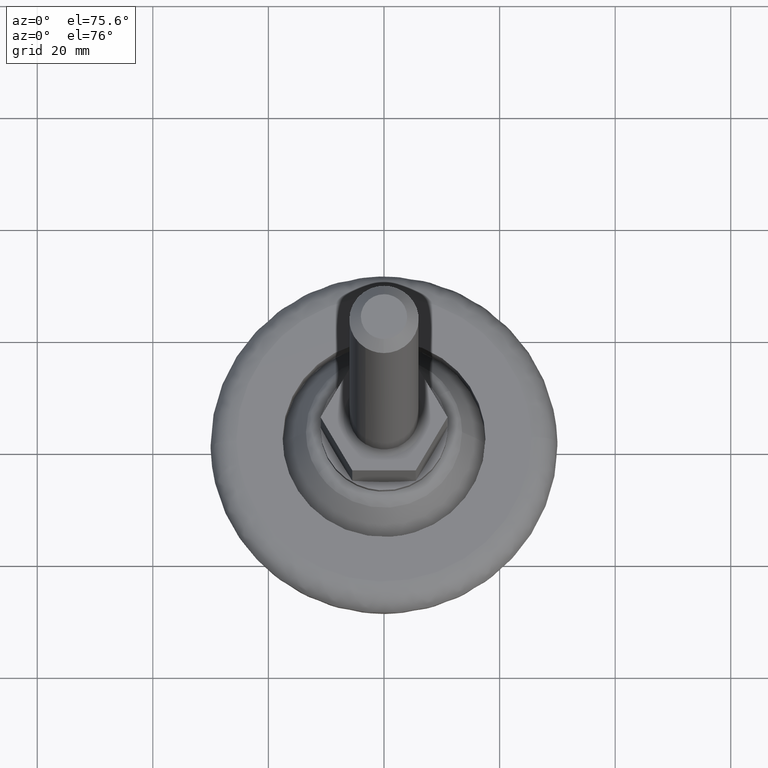
[diagram: clean part render]
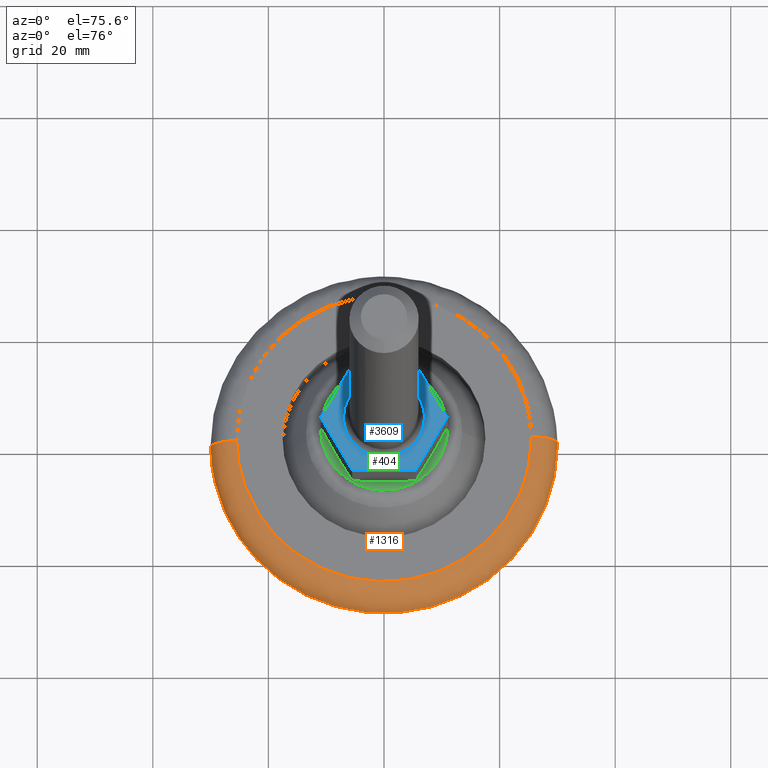
[diagram: same view with three faces highlighted in distinct colors, each labeled with its STEP entity id]
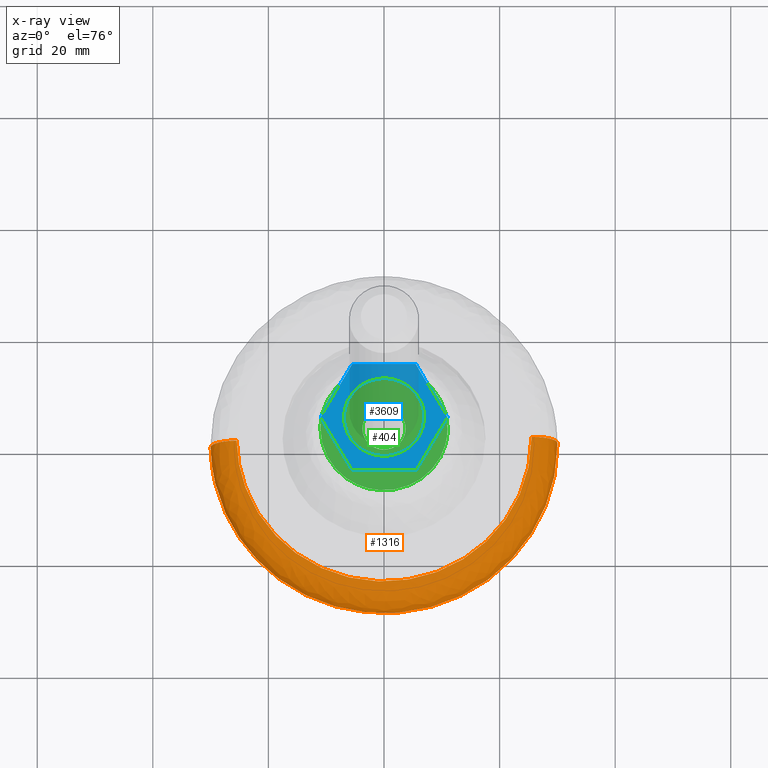
[diagram: x-ray of the same camera — body ghosted, the three highlighted faces saturated]
A machine part, auxiliary view with three faces highlighted in distinct colors.
The next image is the same camera in x-ray (body ghosted, the three faces saturated) — at least one of them is partly hidden behind the body in this view.
Their STEP definitions:

[orange] entity #1316 — the highlighted face is a freeform B-spline surface patch.
#934=CARTESIAN_POINT('',(29.997631326114480,0.376981196500591,4.500000000076401));
#935=VERTEX_POINT('',#934);
#949=CARTESIAN_POINT('',(30.0,0.0,4.500000000000001));
#950=VERTEX_POINT('',#949);
#951=CARTESIAN_POINT('',(29.997631326114480,0.376981196500592,4.500000000076401));
#952=CARTESIAN_POINT('',(29.999999999999996,0.188498039756700,4.500000000038201));
#953=CARTESIAN_POINT('',(30.0,0.0,4.500000000000001));
#961=(BOUNDED_CURVE()B_SPLINE_CURVE(2,(#951,#952,#953),.UNSPECIFIED.,.F.,.U.)B_SPLINE_CURVE_WITH_KNOTS((3,3),(0.497784295921728,0.500000000000000),.UNSPECIFIED.)CURVE()GEOMETRIC_REPRESENTATION_ITEM()RATIONAL_B_SPLINE_CURVE((0.994854295644012,0.997404141202307,1.0))REPRESENTATION_ITEM(''));
#962=EDGE_CURVE('',#935,#950,#961,.T.);
#964=CARTESIAN_POINT('',(-29.990525678498990,-0.753902863300128,4.499999999935793));
#965=VERTEX_POINT('',#964);
#966=CARTESIAN_POINT('',(30.0,0.0,4.500000000000001));
#967=CARTESIAN_POINT('',(30.000036582962299,-1.278224112026844,4.499999999999973));
#968=CARTESIAN_POINT('',(29.840273974002258,-3.773802528675806,4.499999999999753));
#969=CARTESIAN_POINT('',(29.211161647501719,-7.068226515414565,4.499999999999000));
#970=CARTESIAN_POINT('',(28.351294784472231,-9.926980627633041,4.499999999998031));
#971=CARTESIAN_POINT('',(27.310538954339801,-12.529460810169430,4.499999999996859));
#972=CARTESIAN_POINT('',(25.657014216520601,-15.722819247053391,4.499999999995052));
#973=CARTESIAN_POINT('',(23.166847674203790,-19.272785222100261,4.499999999992216));
#974=CARTESIAN_POINT('',(20.129283737298930,-22.367377489604820,4.499999999989068));
#975=CARTESIAN_POINT('',(16.760906278980229,-24.985995463144480,4.499999999985183));
#976=CARTESIAN_POINT('',(13.231105711641961,-27.053970653168200,4.499999999982038));
#977=CARTESIAN_POINT('',(9.203412739958925,-28.652244880372240,4.499999999976875));
#978=CARTESIAN_POINT('',(5.708662988710842,-29.510433846027631,4.499999999973642));
#979=CARTESIAN_POINT('',(1.905062762135516,-30.024472463686269,4.499999999968804));
#980=CARTESIAN_POINT('',(-1.699090145431153,-30.047815215041961,4.499999999965940));
#981=CARTESIAN_POINT('',(-5.566702502652559,-29.540203877673200,4.499999999960974));
#982=CARTESIAN_POINT('',(-8.468598123391837,-28.829950150902530,4.499999999958362));
#983=CARTESIAN_POINT('',(-11.285173224536180,-27.841768514437771,4.499999999955209));
#984=CARTESIAN_POINT('',(-14.056867265832610,-26.574890471989921,4.499999999952291));
#985=CARTESIAN_POINT('',(-17.349428010444068,-24.595332612368001,4.499999999948811));
#986=CARTESIAN_POINT('',(-20.859072732559628,-21.749597590370708,4.499999999945112));
#987=CARTESIAN_POINT('',(-24.059863060795010,-18.137622867594459,4.499999999941769));
#988=CARTESIAN_POINT('',(-26.343400689000120,-14.525825261031990,4.499999999939395));
#989=CARTESIAN_POINT('',(-27.939248837303960,-11.100409518784600,4.499999999937787));
#990=CARTESIAN_POINT('',(-28.946926025231541,-8.093753990024807,4.499999999936710));
#991=CARTESIAN_POINT('',(-29.720466265241800,-4.582982862135848,4.499999999936052));
#992=CARTESIAN_POINT('',(-29.953892336198859,-2.214273546914210,4.499999999935764));
#993=CARTESIAN_POINT('',(-29.990525678498990,-0.753902863300128,4.499999999935793));
#994=B_SPLINE_CURVE_WITH_KNOTS('',3,(#966,#967,#968,#969,#970,#971,#972,#973,#974,#975,#976,#977,#978,#979,#980,#981,#982,#983,#984,#985,#986,#987,#988,#989,#990,#991,#992,#993),.UNSPECIFIED.,.F.,.U.,(4,1,1,1,1,1,1,1,1,1,1,1,1,1,1,1,1,1,1,1,1,1,1,1,1,4),(0.000000024509589,3.834673633457328,7.486773837133228,10.043262194386770,12.782369810683321,15.886646130326600,20.817012315154841,25.747364046493221,28.851651925088579,33.599413217269593,37.981953474303403,41.816674615418087,44.373158463263927,49.485995184109733,52.590293406680317,56.059800094240167,58.433710915916699,61.537980429858777,65.190097286318547,69.937848933861289,75.050806200691767,79.615959951884690,82.720231001969992,86.372375663363854,89.111458632479795,93.493941698257160),.UNSPECIFIED.);
#995=EDGE_CURVE('',#950,#965,#994,.T.);
#1095=CARTESIAN_POINT('',(-29.997631326114480,-0.376981196500602,4.500000000076401));
#1096=VERTEX_POINT('',#1095);
#1097=CARTESIAN_POINT('',(-29.990525678498994,-0.753902863300128,4.499999999935793));
#1098=CARTESIAN_POINT('',(-29.995262652228959,-0.565464353244477,4.500000000006099));
#1099=CARTESIAN_POINT('',(-29.997631326114483,-0.376981196500602,4.500000000076401));
#1107=(BOUNDED_CURVE()B_SPLINE_CURVE(2,(#1097,#1098,#1099),.UNSPECIFIED.,.F.,.U.)B_SPLINE_CURVE_WITH_KNOTS((3,3),(0.995579891769807,0.997784295921728),.UNSPECIFIED.)CURVE()GEOMETRIC_REPRESENTATION_ITEM()RATIONAL_B_SPLINE_CURVE((0.989826157681576,0.992317454108816,0.994854295644012))REPRESENTATION_ITEM(''));
#1108=EDGE_CURVE('',#965,#1096,#1107,.T.);
#1156=CARTESIAN_POINT('',(-25.497986628680518,-0.320434017136763,9.0));
#1157=VERTEX_POINT('',#1156);
#1158=CARTESIAN_POINT('',(-25.497986628680518,-0.320434017136762,9.0));
#1159=CARTESIAN_POINT('',(-29.997631326037506,-0.376981196545936,8.999999998515504));
#1160=CARTESIAN_POINT('',(-29.997631326114476,-0.376981196500602,4.500000000076401));
#1168=(BOUNDED_CURVE()B_SPLINE_CURVE(2,(#1158,#1159,#1160),.UNSPECIFIED.,.F.,.U.)B_SPLINE_CURVE_WITH_KNOTS((3,3),(-1.734750791315617,-0.265249208359240),.UNSPECIFIED.)CURVE()GEOMETRIC_REPRESENTATION_ITEM()RATIONAL_B_SPLINE_CURVE((0.889029723454961,0.628638946281170,0.889029723570190))REPRESENTATION_ITEM(''));
#1169=EDGE_CURVE('',#1157,#1096,#1168,.T.);
#1186=CARTESIAN_POINT('',(25.497986628680518,0.320434017136755,9.0));
#1187=VERTEX_POINT('',#1186);
#1217=CARTESIAN_POINT('',(25.497986628680522,0.320434017136755,9.0));
#1218=CARTESIAN_POINT('',(29.997631326037496,0.376981196545927,8.999999998515500));
#1219=CARTESIAN_POINT('',(29.997631326114480,0.376981196500592,4.500000000076401));
#1227=(BOUNDED_CURVE()B_SPLINE_CURVE(2,(#1217,#1218,#1219),.UNSPECIFIED.,.F.,.U.)B_SPLINE_CURVE_WITH_KNOTS((3,3),(-1.734750791315616,-0.265249208359241),.UNSPECIFIED.)CURVE()GEOMETRIC_REPRESENTATION_ITEM()RATIONAL_B_SPLINE_CURVE((0.889029723454961,0.628638946281170,0.889029723570189))REPRESENTATION_ITEM(''));
#1228=EDGE_CURVE('',#1187,#935,#1227,.T.);
#1235=CARTESIAN_POINT('',(25.176246035102015,1.020594968145682,8.989107148384694));
#1236=CARTESIAN_POINT('',(25.180644449947955,0.670598660126522,8.989107148384694));
#1237=CARTESIAN_POINT('',(25.501596285726865,-24.868592505131485,8.989107148384692));
#1238=CARTESIAN_POINT('',(0.316501890297689,-25.185094395429171,8.989107148384694));
#1239=CARTESIAN_POINT('',(-24.868592505131485,-25.501596285726865,8.989107148384692));
#1240=CARTESIAN_POINT('',(-25.189544340909830,0.037594879485909,8.989107148384692));
#1241=CARTESIAN_POINT('',(-25.193942755755209,0.387591187460878,8.989107148384694));
#1242=CARTESIAN_POINT('',(30.335859251903123,1.229755431516719,9.348917080855310));
#1243=CARTESIAN_POINT('',(30.341159076726569,0.808030972518678,9.348917080855308));
#1244=CARTESIAN_POINT('',(30.727886697010145,-29.965155288710019,9.348917080855307));
#1245=CARTESIAN_POINT('',(0.381365704150065,-30.346520992860089,9.348917080855310));
#1246=CARTESIAN_POINT('',(-29.965155288710019,-30.727886697010145,9.348917080855307));
#1247=CARTESIAN_POINT('',(-30.351882908992916,0.045299564164041,9.348917080855308));
#1248=CARTESIAN_POINT('',(-30.357182733815691,0.467024023108835,9.348917080855310));
#1249=CARTESIAN_POINT('',(29.976203988141190,1.215175722057622,4.187082936711136));
#1250=CARTESIAN_POINT('',(29.981440979409168,0.798451135332072,4.187082936711134));
#1251=CARTESIAN_POINT('',(30.363583642229635,-29.609895009463052,4.187082936711133));
#1252=CARTESIAN_POINT('',(0.376844316383301,-29.986739325846337,4.187082936711134));
#1253=CARTESIAN_POINT('',(-29.609895009463052,-30.363583642229635,4.187082936711133));
#1254=CARTESIAN_POINT('',(-29.992037672282819,0.044762502511611,4.187082936711135));
#1255=CARTESIAN_POINT('',(-29.997274663550140,0.461487089184544,4.187082936711134));
#1263=(BOUNDED_SURFACE()B_SPLINE_SURFACE(2,2,((#1235,#1242,#1249),(#1236,#1243,#1250),(#1237,#1244,#1251),(#1238,#1245,#1252),(#1239,#1246,#1253),(#1240,#1247,#1254),(#1241,#1248,#1255)),.UNSPECIFIED.,.F.,.F.,.U.)B_SPLINE_SURFACE_WITH_KNOTS((3,1,2,1,3),(3,3),(0.0,0.993751592186066,50.681331195042837,100.368910797899600,101.362662389958000),(0.0,8.202284840181363),.UNSPECIFIED.)GEOMETRIC_REPRESENTATION_ITEM()RATIONAL_B_SPLINE_SURFACE(((0.927077710674701,0.608371547716399,0.927077722427663),(0.921709902957817,0.604849058230390,0.921709914642729),(0.647951709431553,0.425202094466791,0.647951717645915),(0.916342095240933,0.601326568744382,0.916342106857795),(0.647951709431553,0.425202094466791,0.647951717645915),(0.921709902957127,0.604849058229938,0.921709914642039),(0.927077710673321,0.608371547715494,0.927077722426283)))REPRESENTATION_ITEM('')SURFACE());
#1264=ORIENTED_EDGE('',*,*,#995,.F.);
#1265=ORIENTED_EDGE('',*,*,#962,.F.);
#1266=ORIENTED_EDGE('',*,*,#1228,.F.);
#1267=CARTESIAN_POINT('',(25.500000000000000,0.0,9.0));
#1268=VERTEX_POINT('',#1267);
#1269=CARTESIAN_POINT('',(25.497986628680515,0.320434017136755,9.0));
#1270=CARTESIAN_POINT('',(25.500000000742187,0.160223333848827,9.0));
#1271=CARTESIAN_POINT('',(25.500000000000000,0.0,9.0));
#1279=(BOUNDED_CURVE()B_SPLINE_CURVE(2,(#1269,#1270,#1271),.UNSPECIFIED.,.F.,.U.)B_SPLINE_CURVE_WITH_KNOTS((3,3),(0.497784295921089,0.500000000000000),.UNSPECIFIED.)CURVE()GEOMETRIC_REPRESENTATION_ITEM()RATIONAL_B_SPLINE_CURVE((0.994854295642542,0.997404141201559,1.0))REPRESENTATION_ITEM(''));
#1280=EDGE_CURVE('',#1187,#1268,#1279,.T.);
#1281=ORIENTED_EDGE('',*,*,#1280,.T.);
#1282=CARTESIAN_POINT('',(25.500000000000000,0.0,9.0));
#1283=CARTESIAN_POINT('',(25.500301774260929,-1.818166101279122,8.999999999999963));
#1284=CARTESIAN_POINT('',(25.226608718556580,-4.363417403769231,9.000000000000041));
#1285=CARTESIAN_POINT('',(24.328880486357772,-7.783172962598037,8.999999999999984));
#1286=CARTESIAN_POINT('',(23.200093725838698,-10.805393868594400,9.000000000000020));
#1287=CARTESIAN_POINT('',(21.512057071484449,-13.864687915492251,9.000000000000014));
#1288=CARTESIAN_POINT('',(19.620381620566299,-16.348417043659040,8.999999999999929));
#1289=CARTESIAN_POINT('',(17.857155771899201,-18.257951065865569,9.000000000000144));
#1290=CARTESIAN_POINT('',(15.764252432219200,-20.132811274727221,8.999999999999954));
#1291=CARTESIAN_POINT('',(13.060511124938531,-21.991037984125771,8.999999999999961));
#1292=CARTESIAN_POINT('',(9.715134070016463,-23.680738941016749,9.000000000000199));
#1293=CARTESIAN_POINT('',(6.198966008130488,-24.838053904906470,8.999999999999712));
#1294=CARTESIAN_POINT('',(2.706768524927926,-25.420074930658469,9.000000000000362));
#1295=CARTESIAN_POINT('',(-0.048013459483527,-25.538445059720811,8.999999999998897));
#1296=CARTESIAN_POINT('',(-2.747739940979913,-25.398557322302931,9.000000000000343));
#1297=CARTESIAN_POINT('',(-5.627524805775439,-24.946667171147439,8.999999999999874));
#1298=CARTESIAN_POINT('',(-8.523672598621452,-24.091615904244829,9.000000000000071));
#1299=CARTESIAN_POINT('',(-11.397314065341289,-22.876259343439060,8.999999999999906));
#1300=CARTESIAN_POINT('',(-14.431735637366121,-21.154123311298989,9.000000000000130));
#1301=CARTESIAN_POINT('',(-17.281425505790839,-18.872494283685040,8.999999999999744));
#1302=CARTESIAN_POINT('',(-19.875835396314191,-16.098880349397682,8.999999999999915));
#1303=CARTESIAN_POINT('',(-21.837321773509650,-13.337406311898750,9.000000000000082));
#1304=CARTESIAN_POINT('',(-23.334033518249878,-10.419474218798220,9.000000000000057));
#1305=CARTESIAN_POINT('',(-24.509536569807249,-7.305356371769106,8.999999999999647));
#1306=CARTESIAN_POINT('',(-25.280339774802780,-4.006187783524849,9.000000000000959));
#1307=CARTESIAN_POINT('',(-25.483649725207439,-1.463151753713669,8.999999999999069));
#1308=CARTESIAN_POINT('',(-25.497986628680518,-0.320434017136763,9.0));
#1309=B_SPLINE_CURVE_WITH_KNOTS('',3,(#1282,#1283,#1284,#1285,#1286,#1287,#1288,#1289,#1290,#1291,#1292,#1293,#1294,#1295,#1296,#1297,#1298,#1299,#1300,#1301,#1302,#1303,#1304,#1305,#1306,#1307,#1308),.UNSPECIFIED.,.F.,.U.,(4,1,1,1,1,1,1,1,1,1,1,1,1,1,1,1,1,1,1,1,1,1,1,1,4),(0.000000065862949,5.454410054043777,7.636175323779895,10.597142466608650,15.116503860535760,18.077483805775039,19.947575772341470,22.908555252213262,26.492897097957471,29.765527656353591,34.129064543511298,37.557586552396572,40.362626471554847,42.388557183327691,45.661238475690062,49.089729661919932,51.427329154451037,55.011661982722572,59.531039108005459,62.336177836645753,66.388027182038343,69.660698679552667,72.154147708590017,76.361859129409609,79.790294385250206),.UNSPECIFIED.);
#1310=EDGE_CURVE('',#1268,#1157,#1309,.T.);
#1311=ORIENTED_EDGE('',*,*,#1310,.T.);
#1312=ORIENTED_EDGE('',*,*,#1169,.T.);
#1313=ORIENTED_EDGE('',*,*,#1108,.F.);
#1314=EDGE_LOOP('',(#1264,#1265,#1266,#1281,#1311,#1312,#1313));
#1315=FACE_OUTER_BOUND('',#1314,.T.);
#1316=ADVANCED_FACE('',(#1315),#1263,.T.);

[blue] entity #3609 — the highlighted face is a freeform B-spline surface patch.
#3403=CARTESIAN_POINT('',(-7.0,0.0,24.0));
#3404=VERTEX_POINT('',#3403);
#3405=CARTESIAN_POINT('',(-2.820345049542372,6.406688206968656,24.0));
#3406=VERTEX_POINT('',#3405);
#3407=CARTESIAN_POINT('',(-7.0,0.0,24.0));
#3408=CARTESIAN_POINT('',(-6.999999999709179,4.566725224280734,23.999999999999996));
#3409=CARTESIAN_POINT('',(-2.820345049542372,6.406688206968656,24.000000000000004));
#3417=(BOUNDED_CURVE()B_SPLINE_CURVE(2,(#3407,#3408,#3409),.UNSPECIFIED.,.F.,.U.)B_SPLINE_CURVE_WITH_KNOTS((3,3),(0.500000000000000,0.681585009858323),.UNSPECIFIED.)CURVE()GEOMETRIC_REPRESENTATION_ITEM()RATIONAL_B_SPLINE_CURVE((1.0,0.787259927897293,0.883563120514829))REPRESENTATION_ITEM(''));
#3418=EDGE_CURVE('',#3404,#3406,#3417,.T.);
#3420=CARTESIAN_POINT('',(2.820345049542372,-6.406688206968656,24.0));
#3421=VERTEX_POINT('',#3420);
#3422=CARTESIAN_POINT('',(2.820345049542371,-6.406688206968656,23.999999999999996));
#3423=CARTESIAN_POINT('',(1.472579583927204,-6.999999998769413,24.000000000000007));
#3424=CARTESIAN_POINT('',(-4.805479E-010,-6.999999998908389,24.0));
#3425=CARTESIAN_POINT('',(-7.000000000189727,-6.999999999569014,24.0));
#3426=CARTESIAN_POINT('',(-7.0,0.0,24.0));
#3434=(BOUNDED_CURVE()B_SPLINE_CURVE(2,(#3422,#3423,#3424,#3425,#3426),.UNSPECIFIED.,.F.,.U.)B_SPLINE_CURVE_WITH_KNOTS((3,2,3),(0.181585009858323,0.250000000000000,0.500000000000000),.UNSPECIFIED.)CURVE()GEOMETRIC_REPRESENTATION_ITEM()RATIONAL_B_SPLINE_CURVE((0.883563120514829,0.919846853289254,1.0,0.707106781186547,1.0))REPRESENTATION_ITEM(''));
#3435=EDGE_CURVE('',#3421,#3404,#3434,.T.);
#3516=CARTESIAN_POINT('',(7.0,0.0,24.0));
#3517=VERTEX_POINT('',#3516);
#3518=CARTESIAN_POINT('',(-2.820345049542372,6.406688206968656,24.000000000000004));
#3519=CARTESIAN_POINT('',(-1.472579583927204,6.999999998769411,23.999999999999996));
#3520=CARTESIAN_POINT('',(4.805498E-010,6.999999998908386,23.999999999999989));
#3521=CARTESIAN_POINT('',(7.000000000189728,6.999999999569013,24.0));
#3522=CARTESIAN_POINT('',(7.0,0.0,24.0));
#3530=(BOUNDED_CURVE()B_SPLINE_CURVE(2,(#3518,#3519,#3520,#3521,#3522),.UNSPECIFIED.,.F.,.U.)B_SPLINE_CURVE_WITH_KNOTS((3,2,3),(0.681585009858323,0.750000000000000,1.0),.UNSPECIFIED.)CURVE()GEOMETRIC_REPRESENTATION_ITEM()RATIONAL_B_SPLINE_CURVE((0.883563120514829,0.919846853289254,1.0,0.707106781186547,1.0))REPRESENTATION_ITEM(''));
#3531=EDGE_CURVE('',#3406,#3517,#3530,.T.);
#3538=CARTESIAN_POINT('',(7.0,0.0,24.0));
#3539=CARTESIAN_POINT('',(6.999999999709179,-4.566725224280735,24.000000000000011));
#3540=CARTESIAN_POINT('',(2.820345049542371,-6.406688206968656,23.999999999999996));
#3548=(BOUNDED_CURVE()B_SPLINE_CURVE(2,(#3538,#3539,#3540),.UNSPECIFIED.,.F.,.U.)B_SPLINE_CURVE_WITH_KNOTS((3,3),(0.0,0.181585009858323),.UNSPECIFIED.)CURVE()GEOMETRIC_REPRESENTATION_ITEM()RATIONAL_B_SPLINE_CURVE((1.0,0.787259927897293,0.883563120514829))REPRESENTATION_ITEM(''));
#3549=EDGE_CURVE('',#3517,#3421,#3548,.T.);
#3554=CARTESIAN_POINT('',(-12.065523541927361,-10.449049963174311,24.0));
#3555=CARTESIAN_POINT('',(12.065525130385531,-10.449049963174311,24.0));
#3556=CARTESIAN_POINT('',(-12.065523541927361,10.449050472794029,24.0));
#3557=CARTESIAN_POINT('',(12.065525130385531,10.449050472794029,24.0));
#3558=B_SPLINE_SURFACE_WITH_KNOTS('',1,1,((#3554,#3556),(#3555,#3557)),.UNSPECIFIED.,.F.,.F.,.U.,(2,2),(2,2),(0.0,24.131048672312890),(0.0,20.898100435968342),.UNSPECIFIED.);
#3559=CARTESIAN_POINT('',(5.484827999999999,9.500000000000000,24.0));
#3560=VERTEX_POINT('',#3559);
#3561=CARTESIAN_POINT('',(-5.484827000000000,9.500000000000000,24.0));
#3562=VERTEX_POINT('',#3561);
#3563=CARTESIAN_POINT('',(5.484827999999999,9.500000000000000,24.0));
#3564=CARTESIAN_POINT('',(-5.484827000000000,9.500000000000000,24.0));
#3565=QUASI_UNIFORM_CURVE('',1,(#3563,#3564),.UNSPECIFIED.,.F.,.U.);
#3566=EDGE_CURVE('',#3560,#3562,#3565,.T.);
#3567=ORIENTED_EDGE('',*,*,#3566,.T.);
#3568=CARTESIAN_POINT('',(-10.969654999999999,0.0,24.0));
#3569=VERTEX_POINT('',#3568);
#3570=CARTESIAN_POINT('',(-5.484827000000000,9.500000000000000,24.0));
#3571=CARTESIAN_POINT('',(-10.969654999999999,0.0,24.0));
#3572=QUASI_UNIFORM_CURVE('',1,(#3570,#3571),.UNSPECIFIED.,.F.,.U.);
#3573=EDGE_CURVE('',#3562,#3569,#3572,.T.);
#3574=ORIENTED_EDGE('',*,*,#3573,.T.);
#3575=CARTESIAN_POINT('',(-5.484827000000000,-9.500000000000000,24.0));
#3576=VERTEX_POINT('',#3575);
#3577=CARTESIAN_POINT('',(-10.969654999999999,0.0,24.0));
#3578=CARTESIAN_POINT('',(-5.484827000000000,-9.500000000000000,24.0));
#3579=QUASI_UNIFORM_CURVE('',1,(#3577,#3578),.UNSPECIFIED.,.F.,.U.);
#3580=EDGE_CURVE('',#3569,#3576,#3579,.T.);
#3581=ORIENTED_EDGE('',*,*,#3580,.T.);
#3582=CARTESIAN_POINT('',(5.484827999999999,-9.500000000000000,24.0));
#3583=VERTEX_POINT('',#3582);
#3584=CARTESIAN_POINT('',(-5.484827000000000,-9.500000000000000,24.0));
#3585=CARTESIAN_POINT('',(5.484827999999999,-9.500000000000000,24.0));
#3586=QUASI_UNIFORM_CURVE('',1,(#3584,#3585),.UNSPECIFIED.,.F.,.U.);
#3587=EDGE_CURVE('',#3576,#3583,#3586,.T.);
#3588=ORIENTED_EDGE('',*,*,#3587,.T.);
#3589=CARTESIAN_POINT('',(10.969656000000001,0.0,24.0));
#3590=VERTEX_POINT('',#3589);
#3591=CARTESIAN_POINT('',(5.484827999999999,-9.500000000000000,24.0));
#3592=CARTESIAN_POINT('',(10.969656000000001,0.0,24.0));
#3593=QUASI_UNIFORM_CURVE('',1,(#3591,#3592),.UNSPECIFIED.,.F.,.U.);
#3594=EDGE_CURVE('',#3583,#3590,#3593,.T.);
#3595=ORIENTED_EDGE('',*,*,#3594,.T.);
#3596=CARTESIAN_POINT('',(10.969656000000001,0.0,24.0));
#3597=CARTESIAN_POINT('',(5.484827999999999,9.500000000000000,24.0));
#3598=QUASI_UNIFORM_CURVE('',1,(#3596,#3597),.UNSPECIFIED.,.F.,.U.);
#3599=EDGE_CURVE('',#3590,#3560,#3598,.T.);
#3600=ORIENTED_EDGE('',*,*,#3599,.T.);
#3601=EDGE_LOOP('',(#3567,#3574,#3581,#3588,#3595,#3600));
#3602=FACE_OUTER_BOUND('',#3601,.T.);
#3603=ORIENTED_EDGE('',*,*,#3549,.T.);
#3604=ORIENTED_EDGE('',*,*,#3435,.T.);
#3605=ORIENTED_EDGE('',*,*,#3418,.T.);
#3606=ORIENTED_EDGE('',*,*,#3531,.T.);
#3607=EDGE_LOOP('',(#3603,#3604,#3605,#3606));
#3608=FACE_BOUND('',#3607,.T.);
#3609=ADVANCED_FACE('',(#3602,#3608),#3558,.T.);

[green] entity #404 — the highlighted face is a freeform B-spline surface patch.
#162=CARTESIAN_POINT('',(-0.863050053079020,-10.966090671058680,16.0));
#163=VERTEX_POINT('',#162);
#169=CARTESIAN_POINT('',(-11.0,0.0,16.0));
#170=VERTEX_POINT('',#169);
#171=CARTESIAN_POINT('',(-11.0,0.0,16.0));
#172=CARTESIAN_POINT('',(-11.0,-10.168295408172634,16.0));
#173=CARTESIAN_POINT('',(-0.863050053079021,-10.966090671058689,16.000000000000004));
#181=(BOUNDED_CURVE()B_SPLINE_CURVE(2,(#171,#172,#173),.UNSPECIFIED.,.F.,.U.)B_SPLINE_CURVE_WITH_KNOTS((3,3),(0.0,0.236331300631630),.UNSPECIFIED.)CURVE()GEOMETRIC_REPRESENTATION_ITEM()RATIONAL_B_SPLINE_CURVE((1.0,0.723120658606529,0.969723356169443))REPRESENTATION_ITEM(''));
#182=EDGE_CURVE('',#170,#163,#181,.T.);
#184=CARTESIAN_POINT('',(0.863050053079018,10.966090671058680,16.0));
#185=VERTEX_POINT('',#184);
#186=CARTESIAN_POINT('',(0.863050053079015,10.966090671058685,16.0));
#187=CARTESIAN_POINT('',(0.432191177120895,11.000000000000002,15.999999999999996));
#188=CARTESIAN_POINT('',(0.0,11.0,16.0));
#189=CARTESIAN_POINT('',(-11.0,11.0,15.999999999999998));
#190=CARTESIAN_POINT('',(-11.0,0.0,16.0));
#198=(BOUNDED_CURVE()B_SPLINE_CURVE(2,(#186,#187,#188,#189,#190),.UNSPECIFIED.,.F.,.U.)B_SPLINE_CURVE_WITH_KNOTS((3,2,3),(0.736331300631630,0.750000000000000,1.0),.UNSPECIFIED.)CURVE()GEOMETRIC_REPRESENTATION_ITEM()RATIONAL_B_SPLINE_CURVE((0.969723356169443,0.983986122580019,1.0,0.707106781186548,1.0))REPRESENTATION_ITEM(''));
#199=EDGE_CURVE('',#185,#170,#198,.T.);
#231=CARTESIAN_POINT('',(11.0,0.0,16.0));
#232=VERTEX_POINT('',#231);
#233=CARTESIAN_POINT('',(11.0,0.0,16.0));
#234=CARTESIAN_POINT('',(11.0,10.168295408172639,16.000000000000004));
#235=CARTESIAN_POINT('',(0.863050053079015,10.966090671058685,16.0));
#243=(BOUNDED_CURVE()B_SPLINE_CURVE(2,(#233,#234,#235),.UNSPECIFIED.,.F.,.U.)B_SPLINE_CURVE_WITH_KNOTS((3,3),(0.500000000000000,0.736331300631630),.UNSPECIFIED.)CURVE()GEOMETRIC_REPRESENTATION_ITEM()RATIONAL_B_SPLINE_CURVE((1.0,0.723120658606529,0.969723356169443))REPRESENTATION_ITEM(''));
#244=EDGE_CURVE('',#232,#185,#243,.T.);
#246=CARTESIAN_POINT('',(-0.863050053079021,-10.966090671058689,16.000000000000004));
#247=CARTESIAN_POINT('',(-0.432191177120898,-11.000000000000004,15.999999999999998));
#248=CARTESIAN_POINT('',(0.0,-11.0,16.0));
#249=CARTESIAN_POINT('',(11.0,-11.0,15.999999999999998));
#250=CARTESIAN_POINT('',(11.0,0.0,16.0));
#258=(BOUNDED_CURVE()B_SPLINE_CURVE(2,(#246,#247,#248,#249,#250),.UNSPECIFIED.,.F.,.U.)B_SPLINE_CURVE_WITH_KNOTS((3,2,3),(0.236331300631630,0.250000000000000,0.500000000000000),.UNSPECIFIED.)CURVE()GEOMETRIC_REPRESENTATION_ITEM()RATIONAL_B_SPLINE_CURVE((0.969723356169443,0.983986122580019,1.0,0.707106781186548,1.0))REPRESENTATION_ITEM(''));
#259=EDGE_CURVE('',#163,#232,#258,.T.);
#285=CARTESIAN_POINT('',(0.294221609199165,3.738440001481934,16.0));
#286=VERTEX_POINT('',#285);
#292=CARTESIAN_POINT('',(-3.750000000000000,0.0,16.0));
#293=VERTEX_POINT('',#292);
#294=CARTESIAN_POINT('',(0.294221609199166,3.738440001481936,16.000000000000004));
#295=CARTESIAN_POINT('',(0.147337901389145,3.750000000000000,16.000000000000004));
#296=CARTESIAN_POINT('',(0.0,3.750000000000000,16.0));
#297=CARTESIAN_POINT('',(-3.750000000000000,3.750000000000000,16.0));
#298=CARTESIAN_POINT('',(-3.750000000000000,0.0,16.0));
#306=(BOUNDED_CURVE()B_SPLINE_CURVE(2,(#294,#295,#296,#297,#298),.UNSPECIFIED.,.F.,.U.)B_SPLINE_CURVE_WITH_KNOTS((3,2,3),(0.736331300622690,0.750000000000000,1.0),.UNSPECIFIED.)CURVE()GEOMETRIC_REPRESENTATION_ITEM()RATIONAL_B_SPLINE_CURVE((0.969723356150787,0.983986122569546,1.0,0.707106781186547,1.0))REPRESENTATION_ITEM(''));
#307=EDGE_CURVE('',#286,#293,#306,.T.);
#309=CARTESIAN_POINT('',(-0.294221609199165,-3.738440001481934,16.0));
#310=VERTEX_POINT('',#309);
#311=CARTESIAN_POINT('',(-3.750000000000000,0.0,16.0));
#312=CARTESIAN_POINT('',(-3.750000000000000,-3.466464343513887,16.0));
#313=CARTESIAN_POINT('',(-0.294221609199165,-3.738440001481936,16.000000000000004));
#321=(BOUNDED_CURVE()B_SPLINE_CURVE(2,(#311,#312,#313),.UNSPECIFIED.,.F.,.U.)B_SPLINE_CURVE_WITH_KNOTS((3,3),(0.0,0.236331300622691),.UNSPECIFIED.)CURVE()GEOMETRIC_REPRESENTATION_ITEM()RATIONAL_B_SPLINE_CURVE((1.0,0.723120658617002,0.969723356150787))REPRESENTATION_ITEM(''));
#322=EDGE_CURVE('',#293,#310,#321,.T.);
#352=CARTESIAN_POINT('',(3.750000000000000,0.0,16.0));
#353=VERTEX_POINT('',#352);
#354=CARTESIAN_POINT('',(-0.294221609199165,-3.738440001481936,16.000000000000004));
#355=CARTESIAN_POINT('',(-0.147337901389144,-3.750000000000000,16.000000000000004));
#356=CARTESIAN_POINT('',(0.0,-3.750000000000000,16.0));
#357=CARTESIAN_POINT('',(3.750000000000000,-3.750000000000000,16.0));
#358=CARTESIAN_POINT('',(3.750000000000000,0.0,16.0));
#366=(BOUNDED_CURVE()B_SPLINE_CURVE(2,(#354,#355,#356,#357,#358),.UNSPECIFIED.,.F.,.U.)B_SPLINE_CURVE_WITH_KNOTS((3,2,3),(0.236331300622691,0.250000000000000,0.500000000000000),.UNSPECIFIED.)CURVE()GEOMETRIC_REPRESENTATION_ITEM()RATIONAL_B_SPLINE_CURVE((0.969723356150787,0.983986122569546,1.0,0.707106781186547,1.0))REPRESENTATION_ITEM(''));
#367=EDGE_CURVE('',#310,#353,#366,.T.);
#369=CARTESIAN_POINT('',(3.750000000000000,0.0,16.0));
#370=CARTESIAN_POINT('',(3.750000000000000,3.466464343513887,16.000000000000004));
#371=CARTESIAN_POINT('',(0.294221609199163,3.738440001481936,15.999999999999998));
#379=(BOUNDED_CURVE()B_SPLINE_CURVE(2,(#369,#370,#371),.UNSPECIFIED.,.F.,.U.)B_SPLINE_CURVE_WITH_KNOTS((3,3),(0.500000000000000,0.736331300622691),.UNSPECIFIED.)CURVE()GEOMETRIC_REPRESENTATION_ITEM()RATIONAL_B_SPLINE_CURVE((1.0,0.723120658617002,0.969723356150787))REPRESENTATION_ITEM(''));
#380=EDGE_CURVE('',#353,#286,#379,.T.);
#387=CARTESIAN_POINT('',(-12.098899957359730,12.095542486515560,16.0));
#388=CARTESIAN_POINT('',(12.098900547445719,12.095542486515560,16.0));
#389=CARTESIAN_POINT('',(-12.098899957359730,-12.095542879906210,16.0));
#390=CARTESIAN_POINT('',(12.098900547445711,-12.095542879906210,16.0));
#391=B_SPLINE_SURFACE_WITH_KNOTS('',1,1,((#387,#389),(#388,#390)),.UNSPECIFIED.,.F.,.F.,.U.,(2,2),(2,2),(0.0,24.197800504805450),(0.0,24.191085366421770),.UNSPECIFIED.);
#392=ORIENTED_EDGE('',*,*,#182,.T.);
#393=ORIENTED_EDGE('',*,*,#259,.T.);
#394=ORIENTED_EDGE('',*,*,#244,.T.);
#395=ORIENTED_EDGE('',*,*,#199,.T.);
#396=EDGE_LOOP('',(#392,#393,#394,#395));
#397=FACE_OUTER_BOUND('',#396,.T.);
#398=ORIENTED_EDGE('',*,*,#380,.F.);
#399=ORIENTED_EDGE('',*,*,#367,.F.);
#400=ORIENTED_EDGE('',*,*,#322,.F.);
#401=ORIENTED_EDGE('',*,*,#307,.F.);
#402=EDGE_LOOP('',(#398,#399,#400,#401));
#403=FACE_BOUND('',#402,.T.);
#404=ADVANCED_FACE('',(#397,#403),#391,.F.);